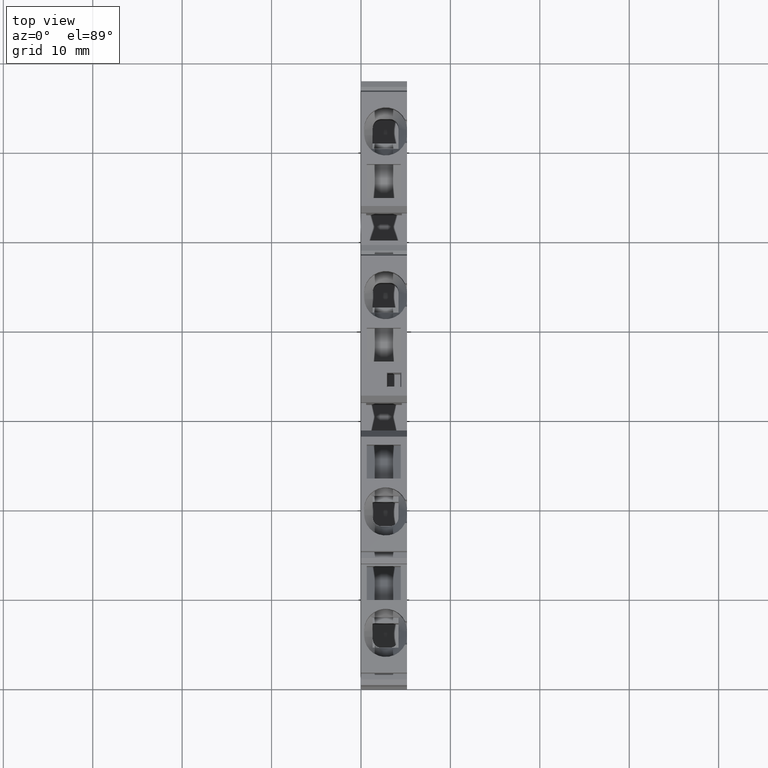
[diagram: clean part render]
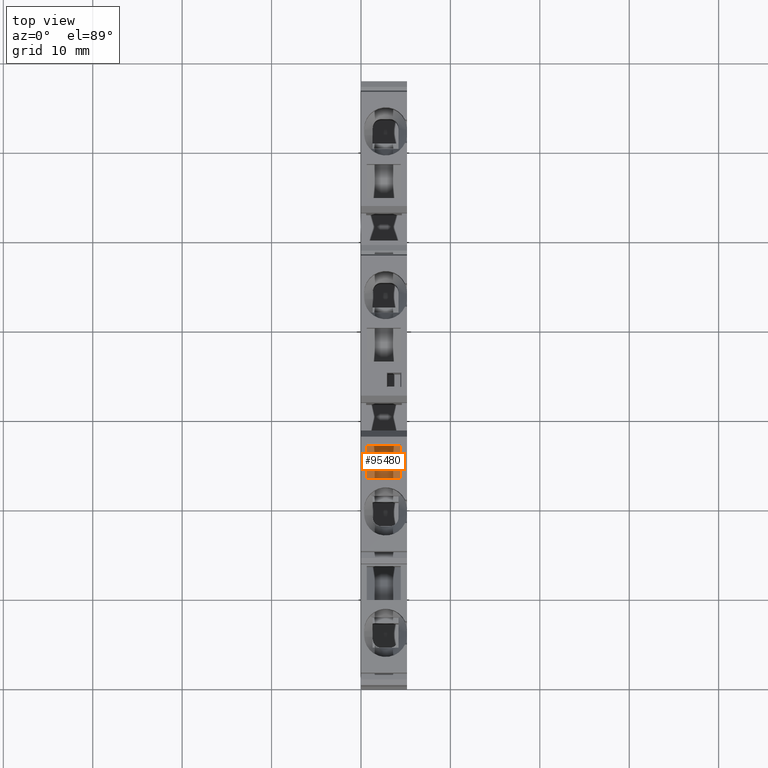
[diagram: same view with one face highlighted and labeled with its STEP entity id]
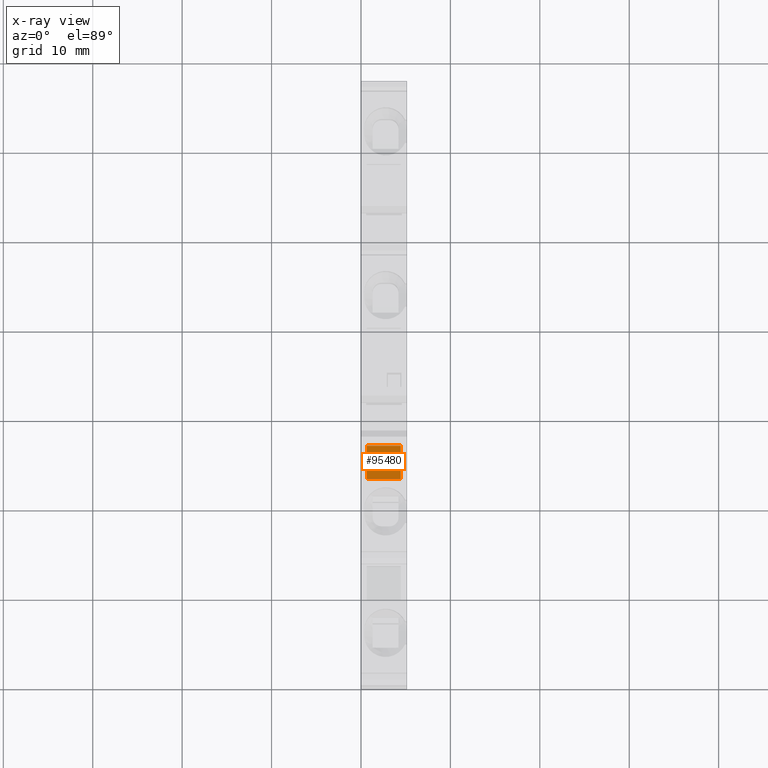
[diagram: x-ray of the same camera — body ghosted, the highlighted face saturated]
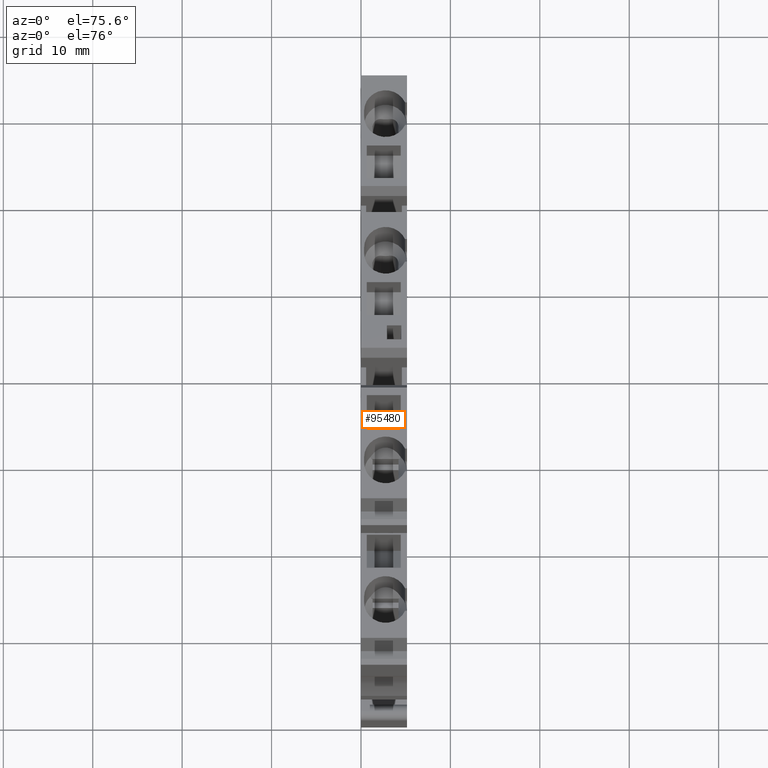
[diagram: same view with one face highlighted and labeled with its STEP entity id]
A machine part, top view. The second image highlights one B-rep face of the part: STEP entity #95480.
The next image is the same camera in x-ray: the body ghosted, the highlighted face saturated — about 0% of this face is hidden behind the body in this view.
A second angle (auxiliary view) of the same face is appended — the face is thin or edge-on in the first view.
In plain terms, the highlighted planar face has unit normal (-0, 0.5736, 0.8192).
Its self-contained STEP definition (entity closure, byte-faithful):
#94220=CARTESIAN_POINT('',(158.128036770249,37.7944061768396,52.97));
#94230=VERTEX_POINT('',#94220);
#94260=CARTESIAN_POINT('',(168.653843651947,30.4241568525353,52.97));
#94270=DIRECTION('',(-0.819152044288992,0.573576436351046,0.));
#94280=VECTOR('',#94270,1.);
#94290=LINE('',#94260,#94280);
#94300=CARTESIAN_POINT('',(161.928036999975,35.1336173707871,52.97));
#94310=VERTEX_POINT('',#94300);
#94320=EDGE_CURVE('',#94310,#94230,#94290,.T.);
#94600=CARTESIAN_POINT('',(158.128036770249,37.7944061768395,49.17));
#94610=VERTEX_POINT('',#94600);
#94640=CARTESIAN_POINT('',(158.128036770249,37.7944061768396,53.67));
#94650=DIRECTION('',(-4.74769524150448E-28,-1.789014349173E-14,-1.));
#94660=VECTOR('',#94650,1.);
#94670=LINE('',#94640,#94660);
#94680=EDGE_CURVE('',#94230,#94610,#94670,.T.);
#94910=CARTESIAN_POINT('',(161.928036999975,35.1336173707871,49.17));
#94920=VERTEX_POINT('',#94910);
#94950=CARTESIAN_POINT('',(168.653843651947,30.4241568525352,49.17));
#94960=DIRECTION('',(-0.819152044288992,0.573576436351046,0.));
#94970=VECTOR('',#94960,1.);
#94980=LINE('',#94950,#94970);
#94990=EDGE_CURVE('',#94920,#94610,#94980,.T.);
#95200=CARTESIAN_POINT('',(161.928036999975,35.1336173707871,53.67));
#95210=DIRECTION('',(1.9067822673791E-28,1.78901434917302E-14,1.));
#95220=VECTOR('',#95210,1.);
#95230=LINE('',#95200,#95220);
#95240=EDGE_CURVE('',#94920,#94310,#95230,.T.);
#95370=CARTESIAN_POINT('',(160.287987853919,36.2819921458898,
52.4700000028399));
#95380=DIRECTION('',(0.573576436351046,0.819152044288992,
-1.46547476138743E-14));
#95390=DIRECTION('',(0.819152044288992,-0.573576436351046,
-1.83830962739542E-14));
#95400=AXIS2_PLACEMENT_3D('',#95370,#95380,#95390);
#95410=PLANE('',#95400);
#95420=ORIENTED_EDGE('',*,*,#95240,.F.);
#95430=ORIENTED_EDGE('',*,*,#94320,.F.);
#95440=ORIENTED_EDGE('',*,*,#94680,.F.);
#95450=ORIENTED_EDGE('',*,*,#94990,.T.);
#95460=EDGE_LOOP('',(#95450,#95440,#95430,#95420));
#95470=FACE_OUTER_BOUND('',#95460,.T.);
#95480=ADVANCED_FACE('',(#95470),#95410,.T.);